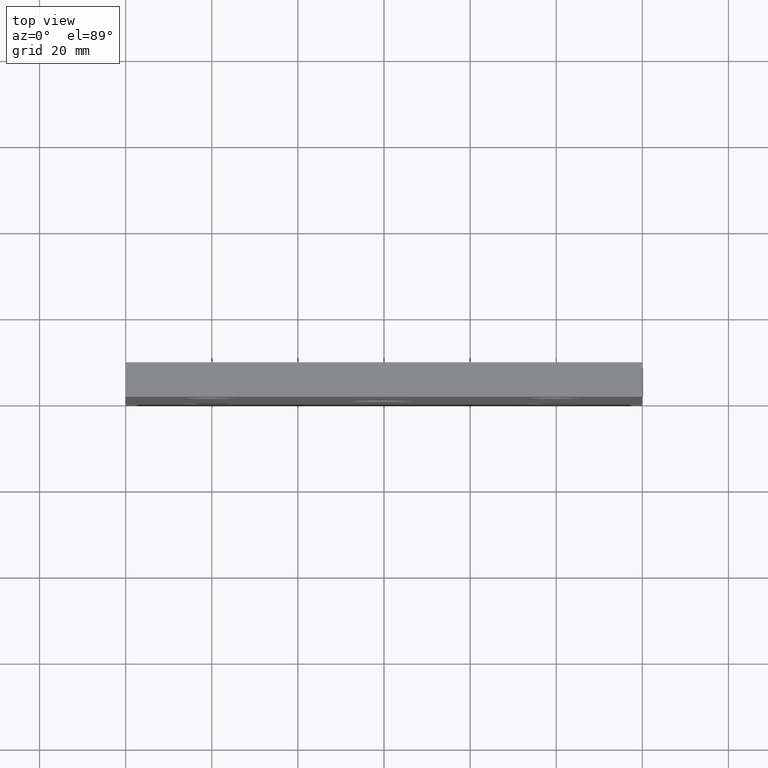
[diagram: clean part render]
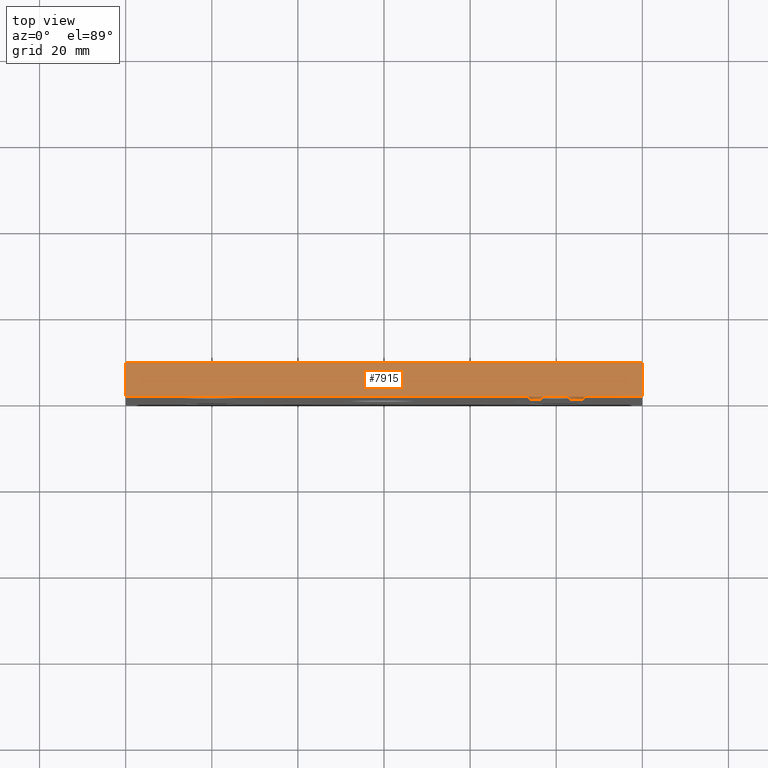
[diagram: same view with one face highlighted and labeled with its STEP entity id]
A machine part, top view. The second image highlights one B-rep face of the part: STEP entity #7915.
In plain terms, the highlighted planar face has unit normal (0, 0, -1).
Its self-contained STEP definition (entity closure, byte-faithful):
#259 = DIRECTION ( 'NONE',  ( 1.000000000000000000, 0.000000000000000000, 0.000000000000000000 ) ) ;
#426 = LINE ( 'NONE', #5585, #4927 ) ;
#797 = EDGE_CURVE ( 'NONE', #11184, #2894, #426, .T. ) ;
#1099 = PLANE ( 'NONE',  #3413 ) ;
#1649 = EDGE_CURVE ( 'NONE', #6987, #9129, #7152, .T. ) ;
#2894 = VERTEX_POINT ( 'NONE', #7458 ) ;
#3413 = AXIS2_PLACEMENT_3D ( 'NONE', #4001, #7853, #9715 ) ;
#3757 = EDGE_CURVE ( 'NONE', #2894, #9129, #5061, .T. ) ;
#4001 = CARTESIAN_POINT ( 'NONE',  ( -60.00000000000000000, 8.000000000000000000, 60.00000000000001421 ) ) ;
#4146 = ORIENTED_EDGE ( 'NONE', *, *, #6489, .T. ) ;
#4927 = VECTOR ( 'NONE', #7757, 1000.000000000000000 ) ;
#4998 = CARTESIAN_POINT ( 'NONE',  ( 60.00000000000000000, 8.000000000000000000, 60.00000000000001421 ) ) ;
#5061 = LINE ( 'NONE', #4998, #5955 ) ;
#5506 = VECTOR ( 'NONE', #259, 1000.000000000000000 ) ;
#5585 = CARTESIAN_POINT ( 'NONE',  ( -60.00000000000000000, 8.000000000000000000, 60.00000000000001421 ) ) ;
#5955 = VECTOR ( 'NONE', #7878, 1000.000000000000000 ) ;
#6489 = EDGE_CURVE ( 'NONE', #11184, #6987, #7732, .T. ) ;
#6605 = ORIENTED_EDGE ( 'NONE', *, *, #3757, .F. ) ;
#6987 = VERTEX_POINT ( 'NONE', #10334 ) ;
#7152 = LINE ( 'NONE', #11714, #5506 ) ;
#7328 = CARTESIAN_POINT ( 'NONE',  ( -60.00000000000000000, 8.000000000000000000, 60.00000000000001421 ) ) ;
#7458 = CARTESIAN_POINT ( 'NONE',  ( 60.00000000000000000, 8.000000000000000000, 60.00000000000001421 ) ) ;
#7732 = LINE ( 'NONE', #7328, #12355 ) ;
#7757 = DIRECTION ( 'NONE',  ( 1.000000000000000000, 0.000000000000000000, 0.000000000000000000 ) ) ;
#7853 = DIRECTION ( 'NONE',  ( 0.000000000000000000, 0.000000000000000000, -1.000000000000000000 ) ) ;
#7878 = DIRECTION ( 'NONE',  ( -0.000000000000000000, -1.000000000000000000, -0.000000000000000000 ) ) ;
#7915 = ADVANCED_FACE ( 'NONE', ( #11005 ), #1099, .F. ) ;
#8446 = EDGE_LOOP ( 'NONE', ( #11025, #6605, #9712, #4146 ) ) ;
#9124 = DIRECTION ( 'NONE',  ( -0.000000000000000000, -1.000000000000000000, -0.000000000000000000 ) ) ;
#9129 = VERTEX_POINT ( 'NONE', #11031 ) ;
#9712 = ORIENTED_EDGE ( 'NONE', *, *, #797, .F. ) ;
#9715 = DIRECTION ( 'NONE',  ( -1.000000000000000000, 0.000000000000000000, -0.000000000000000000 ) ) ;
#10334 = CARTESIAN_POINT ( 'NONE',  ( -60.00000000000000000, 0.000000000000000000, 60.00000000000001421 ) ) ;
#11005 = FACE_OUTER_BOUND ( 'NONE', #8446, .T. ) ;
#11025 = ORIENTED_EDGE ( 'NONE', *, *, #1649, .T. ) ;
#11031 = CARTESIAN_POINT ( 'NONE',  ( 60.00000000000000000, 0.000000000000000000, 60.00000000000001421 ) ) ;
#11184 = VERTEX_POINT ( 'NONE', #11511 ) ;
#11511 = CARTESIAN_POINT ( 'NONE',  ( -60.00000000000000000, 8.000000000000000000, 60.00000000000001421 ) ) ;
#11714 = CARTESIAN_POINT ( 'NONE',  ( -60.00000000000000000, 0.000000000000000000, 60.00000000000001421 ) ) ;
#12355 = VECTOR ( 'NONE', #9124, 1000.000000000000000 ) ;